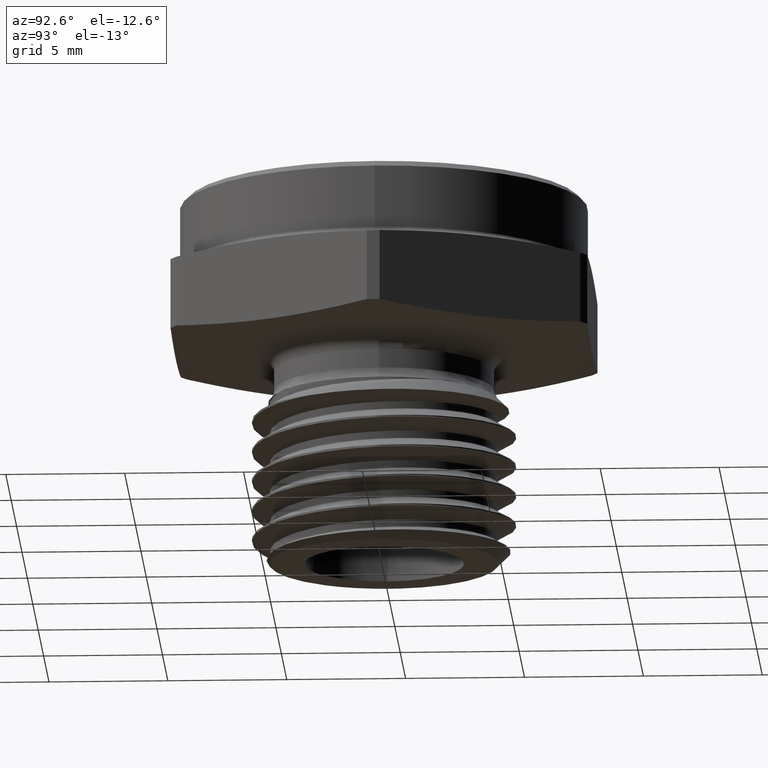
[diagram: clean part render]
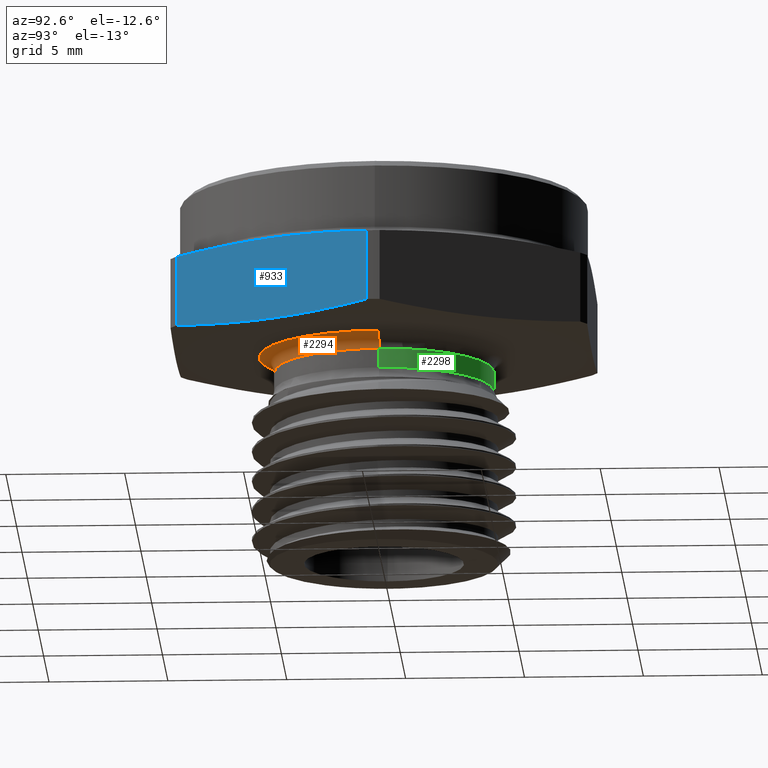
[diagram: same view with three faces highlighted in distinct colors, each labeled with its STEP entity id]
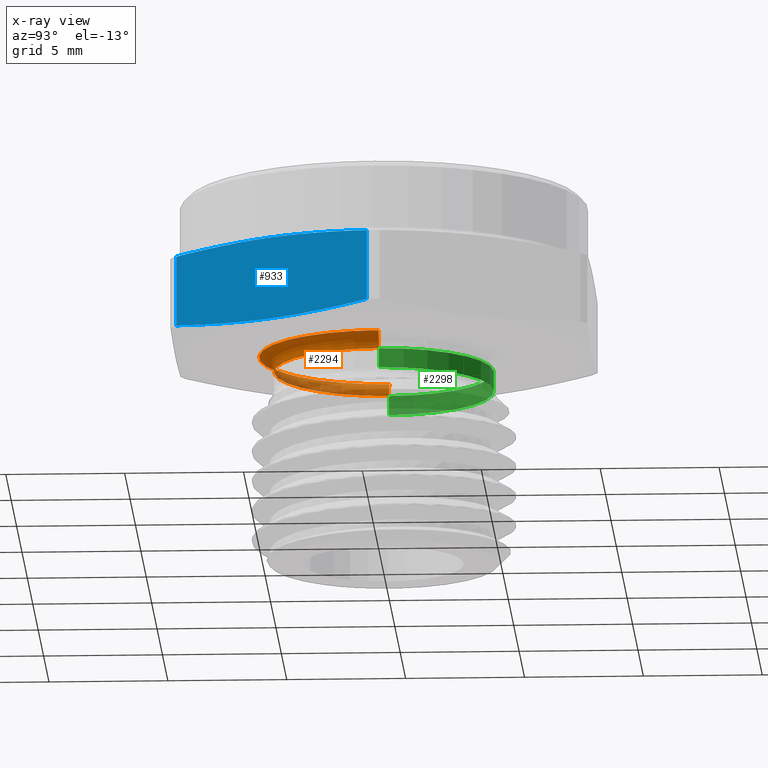
[diagram: x-ray of the same camera — body ghosted, the three highlighted faces saturated]
A machine part, auxiliary view with three faces highlighted in distinct colors.
The next image is the same camera in x-ray (body ghosted, the three faces saturated) — at least one of them is partly hidden behind the body in this view.
Their STEP definitions:

[orange] entity #2294 — the highlighted toroidal blend (fillet) surface has major radius 5.2578 mm and minor (blend) radius 0.635 mm.
#120 = FACE_OUTER_BOUND ( 'NONE', #867, .T. ) ;
#121 = TOROIDAL_SURFACE ( 'NONE', #2062, 0.2070000000000000200, 0.02500000000000000500 ) ;
#168 = CIRCLE ( 'NONE', #2030, 0.02500000000000000500 ) ;
#170 = CIRCLE ( 'NONE', #2032, 0.1820000000000000000 ) ;
#172 = CIRCLE ( 'NONE', #2033, 0.2070000000000000200 ) ;
#175 = CIRCLE ( 'NONE', #2034, 0.02500000000000000100 ) ;
#867 = EDGE_LOOP ( 'NONE', ( #2450, #2449, #2448, #2447 ) ) ;
#895 = VERTEX_POINT ( 'NONE', #2773 ) ;
#897 = VERTEX_POINT ( 'NONE', #2679 ) ;
#1505 = CARTESIAN_POINT ( 'NONE',  ( -0.2070000000000000200, 2.535018874235021400E-017, -0.02500000000000004600 ) ) ;
#1506 = DIRECTION ( 'NONE',  ( 1.224646799147353200E-016, 1.000000000000000000, 0.0000000000000000000 ) ) ;
#1507 = DIRECTION ( 'NONE',  ( -1.000000000000000000, 1.224646799147353500E-016, 0.0000000000000000000 ) ) ;
#1564 = CARTESIAN_POINT ( 'NONE',  ( 0.0000000000000000000, 0.0000000000000000000, -0.02500000000000005000 ) ) ;
#1565 = DIRECTION ( 'NONE',  ( -0.0000000000000000000, -0.0000000000000000000, 1.000000000000000000 ) ) ;
#1566 = DIRECTION ( 'NONE',  ( 1.000000000000000000, 0.0000000000000000000, 0.0000000000000000000 ) ) ;
#1567 = CARTESIAN_POINT ( 'NONE',  ( 0.0000000000000000000, 0.0000000000000000000, -4.268512490100411300E-017 ) ) ;
#1568 = DIRECTION ( 'NONE',  ( -0.0000000000000000000, -0.0000000000000000000, 1.000000000000000000 ) ) ;
#1569 = DIRECTION ( 'NONE',  ( 1.000000000000000000, 0.0000000000000000000, 0.0000000000000000000 ) ) ;
#1572 = CARTESIAN_POINT ( 'NONE',  ( 0.2070000000000000200, 0.0000000000000000000, -0.02500000000000004600 ) ) ;
#1573 = DIRECTION ( 'NONE',  ( 0.0000000000000000000, -1.000000000000000000, 0.0000000000000000000 ) ) ;
#1574 = DIRECTION ( 'NONE',  ( 0.0000000000000000000, 0.0000000000000000000, -1.000000000000000000 ) ) ;
#1685 = CARTESIAN_POINT ( 'NONE',  ( 0.0000000000000000000, 0.0000000000000000000, -0.02500000000000004600 ) ) ;
#1686 = DIRECTION ( 'NONE',  ( -0.0000000000000000000, -0.0000000000000000000, 1.000000000000000000 ) ) ;
#1690 = DIRECTION ( 'NONE',  ( 1.000000000000000000, 0.0000000000000000000, 0.0000000000000000000 ) ) ;
#1790 = CARTESIAN_POINT ( 'NONE',  ( 0.1820000000000000000, 0.0000000000000000000, -0.02500000000000005000 ) ) ;
#1791 = CARTESIAN_POINT ( 'NONE',  ( -0.1820000000000000000, 2.228857174448182800E-017, -0.02500000000000005000 ) ) ;
#1913 = EDGE_CURVE ( 'NONE', #895, #2355, #168, .T. ) ;
#1918 = EDGE_CURVE ( 'NONE', #2355, #2354, #170, .T. ) ;
#1919 = EDGE_CURVE ( 'NONE', #895, #897, #172, .T. ) ;
#1920 = EDGE_CURVE ( 'NONE', #897, #2354, #175, .T. ) ;
#2030 = AXIS2_PLACEMENT_3D ( 'NONE', #1505, #1506, #1507 ) ;
#2032 = AXIS2_PLACEMENT_3D ( 'NONE', #1564, #1565, #1566 ) ;
#2033 = AXIS2_PLACEMENT_3D ( 'NONE', #1567, #1568, #1569 ) ;
#2034 = AXIS2_PLACEMENT_3D ( 'NONE', #1572, #1573, #1574 ) ;
#2062 = AXIS2_PLACEMENT_3D ( 'NONE', #1685, #1686, #1690 ) ;
#2294 = ADVANCED_FACE ( 'NONE', ( #120 ), #121, .F. ) ;
#2354 = VERTEX_POINT ( 'NONE', #1790 ) ;
#2355 = VERTEX_POINT ( 'NONE', #1791 ) ;
#2447 = ORIENTED_EDGE ( 'NONE', *, *, #1920, .F. ) ;
#2448 = ORIENTED_EDGE ( 'NONE', *, *, #1918, .T. ) ;
#2449 = ORIENTED_EDGE ( 'NONE', *, *, #1913, .T. ) ;
#2450 = ORIENTED_EDGE ( 'NONE', *, *, #1919, .F. ) ;
#2679 = CARTESIAN_POINT ( 'NONE',  ( 0.2070000000000000200, 0.0000000000000000000, -4.055086865595390600E-017 ) ) ;
#2773 = CARTESIAN_POINT ( 'NONE',  ( -0.2070000000000000200, 2.535018874235021400E-017, -4.055086865595390600E-017 ) ) ;

[blue] entity #933 — the highlighted planar face has unit normal (-0.866, 0.5, 0).
#4 = LINE ( 'NONE', #1053, #7 ) ;
#6 = LINE ( 'NONE', #1059, #9 ) ;
#7 = VECTOR ( 'NONE', #1048, 39.37007874015748100 ) ;
#9 = VECTOR ( 'NONE', #1063, 39.37007874015748100 ) ;
#233 = EDGE_LOOP ( 'NONE', ( #2421, #2422, #2423, #2424 ) ) ;
#933 = ADVANCED_FACE ( 'NONE', ( #982 ), #2717, .F. ) ;
#958 = VERTEX_POINT ( 'NONE', #2241 ) ;
#961 = VERTEX_POINT ( 'NONE', #2238 ) ;
#967 = VERTEX_POINT ( 'NONE', #2233 ) ;
#982 = FACE_OUTER_BOUND ( 'NONE', #233, .T. ) ;
#1038 = CARTESIAN_POINT ( 'NONE',  ( 0.2364797186814897900, -0.2804051122840645600, 0.1346442159933938000 ) ) ;
#1048 = DIRECTION ( 'NONE',  ( -1.224646799147349800E-016, -0.0000000000000000000, -1.000000000000000000 ) ) ;
#1052 = CARTESIAN_POINT ( 'NONE',  ( 0.3610778099297727900, -0.06459488771593474600, 0.005355784006606377500 ) ) ;
#1053 = CARTESIAN_POINT ( 'NONE',  ( 0.3922273327418435700, -0.01064233157390225900, -1.144414902203094400E-017 ) ) ;
#1057 = CARTESIAN_POINT ( 'NONE',  ( 0.2053301958694189500, -0.3343576684260969300, 0.1283366631458887100 ) ) ;
#1059 = CARTESIAN_POINT ( 'NONE',  ( 0.2053301958694189500, -0.3343576684260969300, 1.144414902203094400E-017 ) ) ;
#1060 = CARTESIAN_POINT ( 'NONE',  ( 0.2987787643056314900, -0.1724999999999997400, 0.1421674355815559500 ) ) ;
#1061 = CARTESIAN_POINT ( 'NONE',  ( 0.3610778099297727900, -0.06459488771593476000, 0.1346442159933938000 ) ) ;
#1062 = CARTESIAN_POINT ( 'NONE',  ( 0.3922273327418435700, -0.01064233157390225900, 0.1283366631458886800 ) ) ;
#1063 = DIRECTION ( 'NONE',  ( 1.224646799147349800E-016, 0.0000000000000000000, 1.000000000000000000 ) ) ;
#1064 = CARTESIAN_POINT ( 'NONE',  ( 0.3922273327418435700, -0.01064233157390225900, 0.01166333685411172200 ) ) ;
#1065 = CARTESIAN_POINT ( 'NONE',  ( 0.2987787643056312700, -0.1724999999999997100, -0.002167435581555945900 ) ) ;
#1066 = CARTESIAN_POINT ( 'NONE',  ( 0.2364797186814898100, -0.2804051122840645600, 0.005355784006606401800 ) ) ;
#1067 = CARTESIAN_POINT ( 'NONE',  ( 0.2053301958694189500, -0.3343576684260969300, 0.01166333685411172200 ) ) ;
#1795 = CARTESIAN_POINT ( 'NONE',  ( 0.2053301958694189500, -0.3343576684260969300, 0.01166333685411172200 ) ) ;
#1852 = EDGE_CURVE ( 'NONE', #967, #961, #4, .T. ) ;
#1853 = EDGE_CURVE ( 'NONE', #958, #967, #2859, .T. ) ;
#1854 = EDGE_CURVE ( 'NONE', #2495, #958, #6, .T. ) ;
#1855 = EDGE_CURVE ( 'NONE', #961, #2495, #2860, .T. ) ;
#1981 = AXIS2_PLACEMENT_3D ( 'NONE', #2762, #2771, #2665 ) ;
#2233 = CARTESIAN_POINT ( 'NONE',  ( 0.3922273327418435700, -0.01064233157390225900, 0.1283366631458886800 ) ) ;
#2238 = CARTESIAN_POINT ( 'NONE',  ( 0.3922273327418435700, -0.01064233157390225900, 0.01166333685411172200 ) ) ;
#2241 = CARTESIAN_POINT ( 'NONE',  ( 0.2053301958694189500, -0.3343576684260969300, 0.1283366631458887100 ) ) ;
#2421 = ORIENTED_EDGE ( 'NONE', *, *, #1852, .F. ) ;
#2422 = ORIENTED_EDGE ( 'NONE', *, *, #1853, .F. ) ;
#2423 = ORIENTED_EDGE ( 'NONE', *, *, #1854, .F. ) ;
#2424 = ORIENTED_EDGE ( 'NONE', *, *, #1855, .F. ) ;
#2495 = VERTEX_POINT ( 'NONE', #1795 ) ;
#2665 = DIRECTION ( 'NONE',  ( -0.4999999999999991700, -0.8660254037844390400, 0.0000000000000000000 ) ) ;
#2717 = PLANE ( 'NONE',  #1981 ) ;
#2762 = CARTESIAN_POINT ( 'NONE',  ( 0.1991858428704207700, -0.3450000000000001400, 0.1400000000000000100 ) ) ;
#2771 = DIRECTION ( 'NONE',  ( -0.8660254037844391500, 0.4999999999999992200, 0.0000000000000000000 ) ) ;
#2859 = B_SPLINE_CURVE_WITH_KNOTS ( 'NONE', 3,
 ( #1057, #1038, #1060, #1061, #1062 ),
 .UNSPECIFIED., .F., .F.,
 ( 4, 1, 4 ),
 ( 1.975061656145805900E-006, 0.004749162338215737000, 0.009496349614775329000 ),
 .UNSPECIFIED. ) ;
#2860 = B_SPLINE_CURVE_WITH_KNOTS ( 'NONE', 3,
 ( #1064, #1052, #1065, #1066, #1067 ),
 .UNSPECIFIED., .F., .F.,
 ( 4, 1, 4 ),
 ( 1.975061655743237800E-006, 0.004749162338215334600, 0.009496349614774924800 ),
 .UNSPECIFIED. ) ;

[green] entity #2298 — the highlighted cylindrical surface (partial cylindrical patch) has radius 4.6228 mm, axis along (-0, -0, 1).
#62 = LINE ( 'NONE', #1470, #65 ) ;
#64 = CIRCLE ( 'NONE', #2029, 0.1820000000000000000 ) ;
#65 = VECTOR ( 'NONE', #1472, 39.37007874015748100 ) ;
#124 = FACE_OUTER_BOUND ( 'NONE', #866, .T. ) ;
#125 = CYLINDRICAL_SURFACE ( 'NONE', #2067, 0.1820000000000000000 ) ;
#173 = CIRCLE ( 'NONE', #2031, 0.1820000000000000000 ) ;
#177 = LINE ( 'NONE', #1570, #179 ) ;
#179 = VECTOR ( 'NONE', #1571, 39.37007874015748100 ) ;
#860 = ORIENTED_EDGE ( 'NONE', *, *, #1908, .T. ) ;
#866 = EDGE_LOOP ( 'NONE', ( #2446, #860, #2417, #2416 ) ) ;
#894 = VERTEX_POINT ( 'NONE', #2606 ) ;
#896 = VERTEX_POINT ( 'NONE', #2767 ) ;
#1470 = CARTESIAN_POINT ( 'NONE',  ( -0.1820000000000000000, 2.228857174448182800E-017, 0.0000000000000000000 ) ) ;
#1472 = DIRECTION ( 'NONE',  ( -0.0000000000000000000, -0.0000000000000000000, 1.000000000000000000 ) ) ;
#1501 = CARTESIAN_POINT ( 'NONE',  ( 0.0000000000000000000, 0.0000000000000000000, -0.02500000000000005000 ) ) ;
#1502 = DIRECTION ( 'NONE',  ( -0.0000000000000000000, -0.0000000000000000000, 1.000000000000000000 ) ) ;
#1503 = DIRECTION ( 'NONE',  ( 1.000000000000000000, 0.0000000000000000000, 0.0000000000000000000 ) ) ;
#1561 = CARTESIAN_POINT ( 'NONE',  ( 0.0000000000000000000, 0.0000000000000000000, -0.05732233047033625400 ) ) ;
#1562 = DIRECTION ( 'NONE',  ( -0.0000000000000000000, -0.0000000000000000000, 1.000000000000000000 ) ) ;
#1563 = DIRECTION ( 'NONE',  ( 1.000000000000000000, 0.0000000000000000000, 0.0000000000000000000 ) ) ;
#1570 = CARTESIAN_POINT ( 'NONE',  ( 0.1820000000000000000, 0.0000000000000000000, 0.0000000000000000000 ) ) ;
#1571 = DIRECTION ( 'NONE',  ( -0.0000000000000000000, -0.0000000000000000000, 1.000000000000000000 ) ) ;
#1699 = DIRECTION ( 'NONE',  ( 1.000000000000000000, 0.0000000000000000000, 0.0000000000000000000 ) ) ;
#1700 = CARTESIAN_POINT ( 'NONE',  ( 0.0000000000000000000, 0.0000000000000000000, 0.0000000000000000000 ) ) ;
#1701 = DIRECTION ( 'NONE',  ( -0.0000000000000000000, -0.0000000000000000000, 1.000000000000000000 ) ) ;
#1790 = CARTESIAN_POINT ( 'NONE',  ( 0.1820000000000000000, 0.0000000000000000000, -0.02500000000000005000 ) ) ;
#1791 = CARTESIAN_POINT ( 'NONE',  ( -0.1820000000000000000, 2.228857174448182800E-017, -0.02500000000000005000 ) ) ;
#1908 = EDGE_CURVE ( 'NONE', #894, #2355, #62, .T. ) ;
#1912 = EDGE_CURVE ( 'NONE', #2354, #2355, #64, .T. ) ;
#1917 = EDGE_CURVE ( 'NONE', #896, #894, #173, .T. ) ;
#1922 = EDGE_CURVE ( 'NONE', #896, #2354, #177, .T. ) ;
#2029 = AXIS2_PLACEMENT_3D ( 'NONE', #1501, #1502, #1503 ) ;
#2031 = AXIS2_PLACEMENT_3D ( 'NONE', #1561, #1562, #1563 ) ;
#2067 = AXIS2_PLACEMENT_3D ( 'NONE', #1700, #1701, #1699 ) ;
#2298 = ADVANCED_FACE ( 'NONE', ( #124 ), #125, .T. ) ;
#2354 = VERTEX_POINT ( 'NONE', #1790 ) ;
#2355 = VERTEX_POINT ( 'NONE', #1791 ) ;
#2416 = ORIENTED_EDGE ( 'NONE', *, *, #1922, .F. ) ;
#2417 = ORIENTED_EDGE ( 'NONE', *, *, #1912, .F. ) ;
#2446 = ORIENTED_EDGE ( 'NONE', *, *, #1917, .T. ) ;
#2606 = CARTESIAN_POINT ( 'NONE',  ( -0.1820000000000000000, 2.273693517312165900E-017, -0.05732233047033625400 ) ) ;
#2767 = CARTESIAN_POINT ( 'NONE',  ( 0.1820000000000000000, 0.0000000000000000000, -0.05732233047033625400 ) ) ;